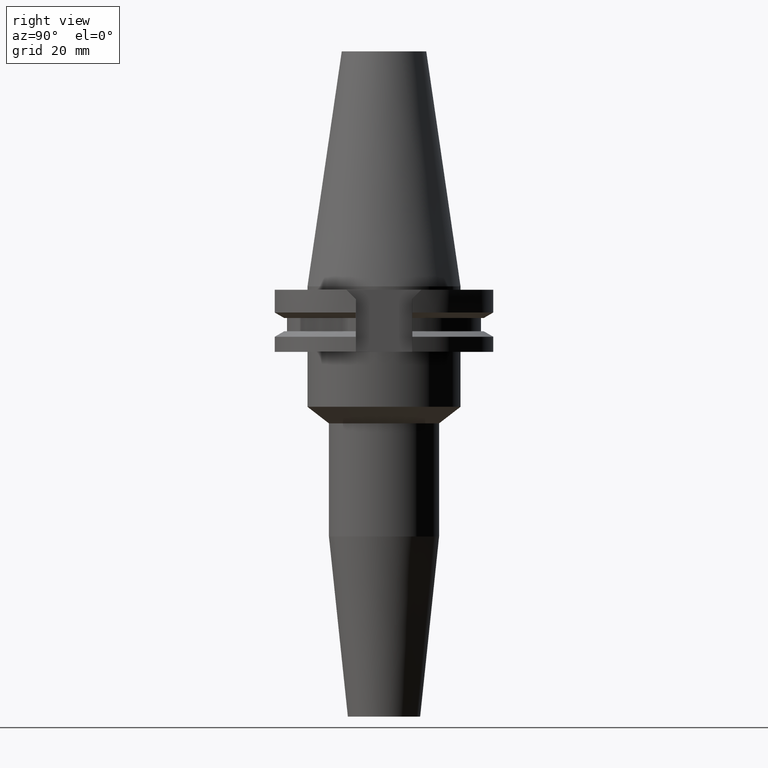
[diagram: clean part render]
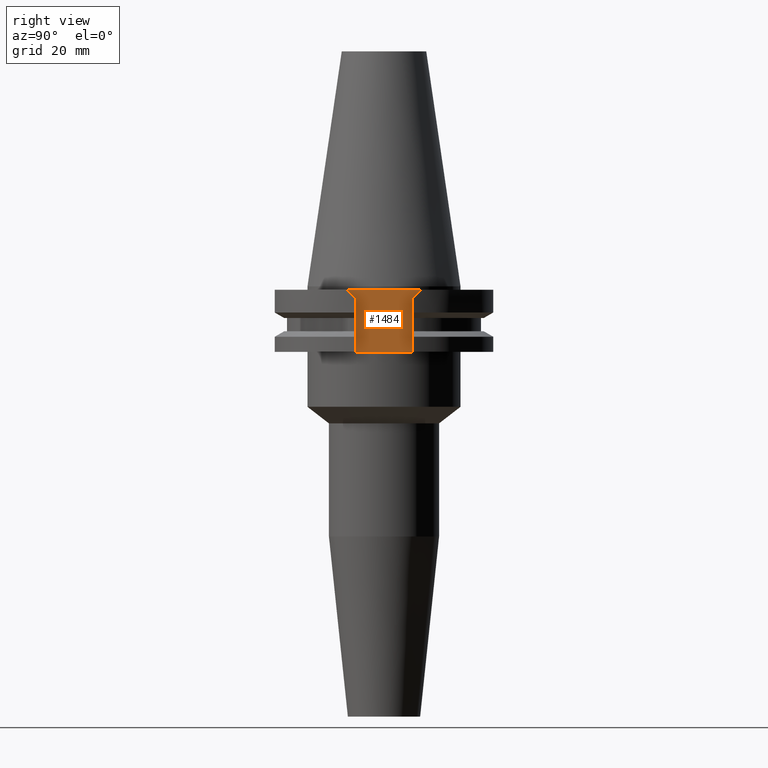
[diagram: same view with one face highlighted and labeled with its STEP entity id]
A machine part, right view. The second image highlights one B-rep face of the part: STEP entity #1484.
In plain terms, the highlighted planar face has unit normal (1, 0, 0).
Its self-contained STEP definition (entity closure, byte-faithful):
#94=DIRECTION('',(0.E0,-1.E0,0.E0));
#95=VECTOR('',#94,2.178E1);
#96=CARTESIAN_POINT('',(2.257E1,1.089E1,-1.E0));
#97=LINE('',#96,#95);
#163=DIRECTION('',(0.E0,-1.E0,0.E0));
#164=VECTOR('',#163,1.638E1);
#165=CARTESIAN_POINT('',(2.257E1,8.19E0,-1.905E1));
#166=LINE('',#165,#164);
#170=DIRECTION('',(0.E0,0.E0,1.E0));
#171=VECTOR('',#170,1.535E1);
#172=CARTESIAN_POINT('',(2.257E1,-8.19E0,-1.905E1));
#173=LINE('',#172,#171);
#177=DIRECTION('',(0.E0,-7.071067811865E-1,7.071067811865E-1));
#178=VECTOR('',#177,3.818376618407E0);
#179=CARTESIAN_POINT('',(2.257E1,-8.19E0,-3.7E0));
#180=LINE('',#179,#178);
#184=DIRECTION('',(0.E0,-7.071067811865E-1,-7.071067811865E-1));
#185=VECTOR('',#184,3.818376618407E0);
#186=CARTESIAN_POINT('',(2.257E1,1.089E1,-1.E0));
#187=LINE('',#186,#185);
#191=DIRECTION('',(0.E0,0.E0,-1.E0));
#192=VECTOR('',#191,1.535E1);
#193=CARTESIAN_POINT('',(2.257E1,8.19E0,-3.7E0));
#194=LINE('',#193,#192);
#1226=CARTESIAN_POINT('',(2.257E1,8.19E0,-1.905E1));
#1227=CARTESIAN_POINT('',(2.257E1,-8.19E0,-1.905E1));
#1228=VERTEX_POINT('',#1226);
#1229=VERTEX_POINT('',#1227);
#1246=CARTESIAN_POINT('',(2.257E1,-8.19E0,-3.7E0));
#1247=VERTEX_POINT('',#1246);
#1248=CARTESIAN_POINT('',(2.257E1,-1.089E1,-1.E0));
#1249=VERTEX_POINT('',#1248);
#1250=CARTESIAN_POINT('',(2.257E1,1.089E1,-1.E0));
#1251=VERTEX_POINT('',#1250);
#1252=CARTESIAN_POINT('',(2.257E1,8.19E0,-3.7E0));
#1253=VERTEX_POINT('',#1252);
#1466=CARTESIAN_POINT('',(2.257E1,0.E0,0.E0));
#1467=DIRECTION('',(1.E0,0.E0,0.E0));
#1468=DIRECTION('',(0.E0,0.E0,-1.E0));
#1469=AXIS2_PLACEMENT_3D('',#1466,#1467,#1468);
#1470=PLANE('',#1469);
#1472=ORIENTED_EDGE('',*,*,#1471,.T.);
#1474=ORIENTED_EDGE('',*,*,#1473,.T.);
#1476=ORIENTED_EDGE('',*,*,#1475,.T.);
#1477=ORIENTED_EDGE('',*,*,#1439,.F.);
#1479=ORIENTED_EDGE('',*,*,#1478,.T.);
#1481=ORIENTED_EDGE('',*,*,#1480,.T.);
#1482=EDGE_LOOP('',(#1472,#1474,#1476,#1477,#1479,#1481));
#1483=FACE_OUTER_BOUND('',#1482,.F.);
#1439=EDGE_CURVE('',#1251,#1249,#97,.T.);
#1471=EDGE_CURVE('',#1228,#1229,#166,.T.);
#1473=EDGE_CURVE('',#1229,#1247,#173,.T.);
#1475=EDGE_CURVE('',#1247,#1249,#180,.T.);
#1478=EDGE_CURVE('',#1251,#1253,#187,.T.);
#1480=EDGE_CURVE('',#1253,#1228,#194,.T.);
#1484=ADVANCED_FACE('',(#1483),#1470,.T.);